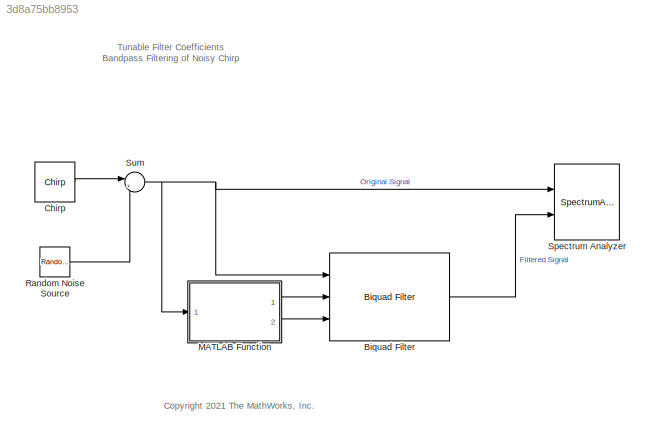
MODEL slx_3d8a75bb8953
KIND model
CONFIG AbsTol = auto
CONFIG EnableMultiTasking = on
CONFIG FixedStep = auto
CONFIG MaxStep = auto
CONFIG MinStep = auto
CONFIG RelTol = 1e-3
CONFIG SampleTimeConstraint = Unconstrained
CONFIG SolverName = FixedStepDiscrete
CONFIG StartTime = 0.0
CONFIG StopTime = Inf
BLOCK [Reference] Biquad Filter  REF=dsparch4/Biquad Filter
  Ports = [3, 1]
  SourceBlock = dsparch4/Biquad Filter
  SourceProductBaseCode = DS
  SourceType = Biquad Filter
  UserDataPersistent = on
BLOCK [Reference] Chirp  REF=dspsrcs4/Chirp
  Ports = [0, 1]
  SourceBlock = dspsrcs4/Chirp
  SourceProductName = DSP System Toolbox
  SourceType = Chirp
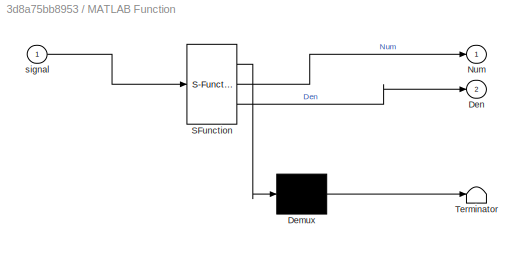
BLOCK [SubSystem] MATLAB Function
  ErrorFcn = Stateflow.Translate.translate
  PermitHierarchicalResolution = ExplicitOnly
  Ports = [1, 2]
  RequestExecContextInheritance = off
  SFBlockType = MATLAB Function
  TreatAsAtomicUnit = on
BLOCK [Demux] MATLAB Function/ Demux 
  Outputs = 1
  Ports = [1, 1]
BLOCK [S-Function] MATLAB Function/ SFunction 
  EnableBusSupport = on
  FunctionName = sf_sfun
  PortCounts = [1 3]
  Ports = [1, 3]
  SFcnIsStateOwnerBlock = off
  SFunctionDeploymentMode = off
  Tag = Stateflow S-Function 2
BLOCK [Terminator] MATLAB Function/ Terminator 
BLOCK [Outport] MATLAB Function/Den
  Port = 2
BLOCK [Outport] MATLAB Function/Num
BLOCK [Inport] MATLAB Function/signal
BLOCK [Reference] Random Noise Source  REF=dspsrcs4/Random
Source
  Ports = [0, 1]
  SourceBlock = dspsrcs4/Random\nSource
  SourceProductName = DSP System Toolbox
  SourceType = Random Source
  UserDataPersistent = on
BLOCK [SpectrumAnalyzer] Spectrum Analyzer
  NumInputPorts = 2
  Ports = [2]
  ScopeSpecificationString = spbscopes.SpectrumAnalyzerBlockCfg('CurrentConfiguration', extmgr.ConfigurationSet(extmgr.Configuration('Core','General UI',true),extmgr.Configuration('Core','Source UI',true),extmgr.Configuration('Sources','WiredSimulink',true),extmgr.Configuration('Sources','Simulink',false),extmgr.Configuration('Sources','Streaming',false),extmgr.Configuration('Sources','SPTool',false),extmgr.Configuration('Sou...<+5071ch>
BLOCK [Sum] Sum
  Inputs = |++
  Ports = [2, 1]
ANNOTATION (root): Tunable Filter Coefficients Bandpass Filtering of Noisy Chirp
ANNOTATION (root): <copyright redacted>
LINE Biquad Filter:1 -> Spectrum Analyzer:2
LINE Chirp:1 -> Sum:1
LINE MATLAB Function:1 -> Biquad Filter:2
LINE MATLAB Function:2 -> Biquad Filter:3
LINE Random Noise Source:1 -> Sum:2
NET Sum:1 -> Biquad Filter:1, MATLAB Function:1, Spectrum Analyzer:1
note: NET lines group one-source signal fan-out (src -> all destinations, sorted); 1:1 wires keep LINE
CHART MATLAB Function states=1 transitions=1
  STATE_LABEL 'eML_blk_kernel()'
  STATE_LABEL "SCRIPT:\n% <copyright redacted>\n\nfunction [Num, Den]= Coeffs(signal)\nFs = 44100; % Sampling Rate of Original Signal\nFn = Fs/2; % Nyquist Frequency\n\n[pxx, f] = pwelch(signal,500,300,500,Fs); % Obtain Welch's overlapped segment averaging PSD\n                                          % estimate of the signal\n[~,idx] = max(pxx);\n\ntemp = f(idx);\nFc = temp(1);\n\npeakFreq = Fc/Fn; % Peak freq...<+226ch>"
CHART  states=0 transitions=0
